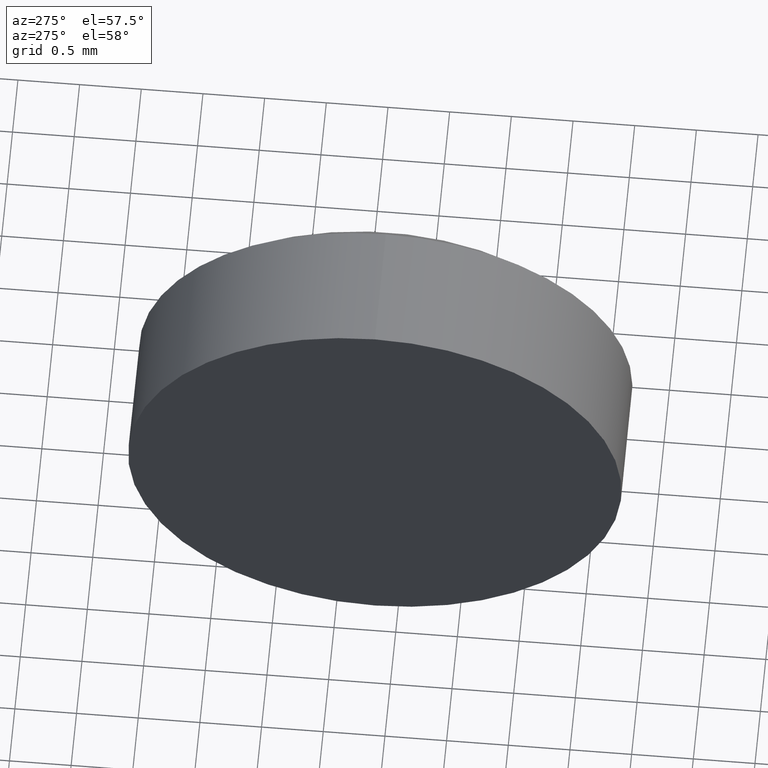
[diagram: clean part render]
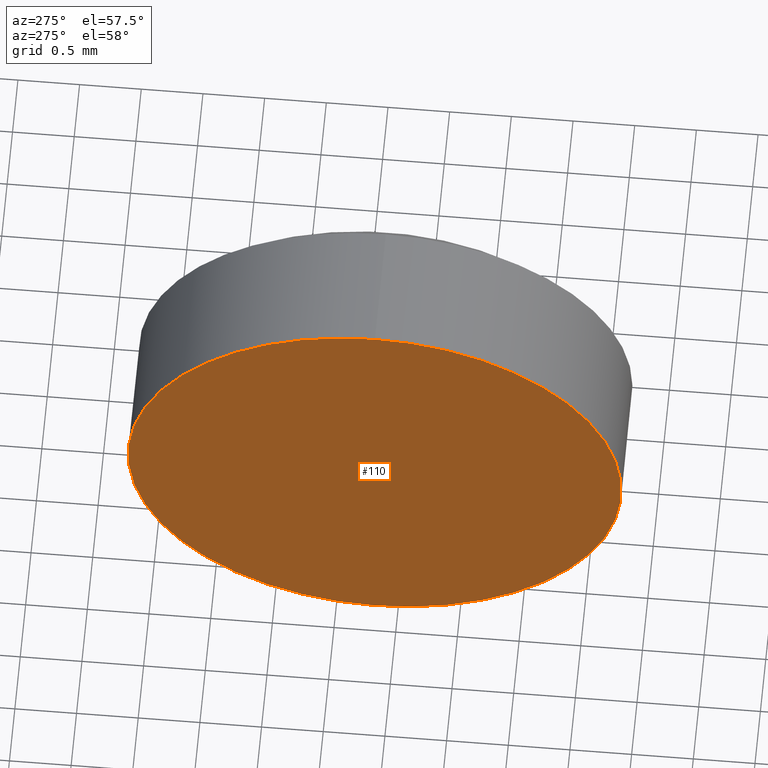
[diagram: same view with one face highlighted and labeled with its STEP entity id]
A machine part, auxiliary view. The second image highlights one B-rep face of the part: STEP entity #110.
In plain terms, the highlighted planar face has unit normal (1, 0, 0).
Its self-contained STEP definition (entity closure, byte-faithful):
#11 = DIRECTION ( 'NONE',  ( -1.000000000000000000, -0.0000000000000000000, -0.0000000000000000000 ) ) ;
#15 = AXIS2_PLACEMENT_3D ( 'NONE', #49, #17, #131 ) ;
#17 = DIRECTION ( 'NONE',  ( -1.000000000000000000, -0.0000000000000000000, -0.0000000000000000000 ) ) ;
#18 = AXIS2_PLACEMENT_3D ( 'NONE', #65, #11, #124 ) ;
#23 = VERTEX_POINT ( 'NONE', #126 ) ;
#26 = FACE_OUTER_BOUND ( 'NONE', #42, .T. ) ;
#27 = AXIS2_PLACEMENT_3D ( 'NONE', #33, #45, #166 ) ;
#30 = ORIENTED_EDGE ( 'NONE', *, *, #114, .T. ) ;
#33 = CARTESIAN_POINT ( 'NONE',  ( 387.6827272250636700, 21.68539423568211400, 0.0000000000000000000 ) ) ;
#42 = EDGE_LOOP ( 'NONE', ( #30, #77 ) ) ;
#44 = CIRCLE ( 'NONE', #15, 1.999999999999998200 ) ;
#45 = DIRECTION ( 'NONE',  ( 1.000000000000000000, 0.0000000000000000000, 0.0000000000000000000 ) ) ;
#49 = CARTESIAN_POINT ( 'NONE',  ( 387.6827272250636700, 21.68539423568211400, 0.0000000000000000000 ) ) ;
#65 = CARTESIAN_POINT ( 'NONE',  ( 387.6827272250636700, 21.68539423568211400, 0.0000000000000000000 ) ) ;
#77 = ORIENTED_EDGE ( 'NONE', *, *, #142, .T. ) ;
#108 = PLANE ( 'NONE',  #27 ) ;
#109 = CARTESIAN_POINT ( 'NONE',  ( 387.6827272250636700, 21.68539423568211400, -1.999999999999998200 ) ) ;
#110 = ADVANCED_FACE ( 'NONE', ( #26 ), #108, .F. ) ;
#114 = EDGE_CURVE ( 'NONE', #23, #162, #44, .T. ) ;
#124 = DIRECTION ( 'NONE',  ( 0.0000000000000000000, 0.0000000000000000000, 1.000000000000000000 ) ) ;
#126 = CARTESIAN_POINT ( 'NONE',  ( 387.6827272250636700, 21.68539423568211400, 1.999999999999998200 ) ) ;
#131 = DIRECTION ( 'NONE',  ( 0.0000000000000000000, 0.0000000000000000000, 1.000000000000000000 ) ) ;
#132 = CIRCLE ( 'NONE', #18, 1.999999999999998200 ) ;
#142 = EDGE_CURVE ( 'NONE', #162, #23, #132, .T. ) ;
#162 = VERTEX_POINT ( 'NONE', #109 ) ;
#166 = DIRECTION ( 'NONE',  ( 0.0000000000000000000, 0.0000000000000000000, -1.000000000000000000 ) ) ;